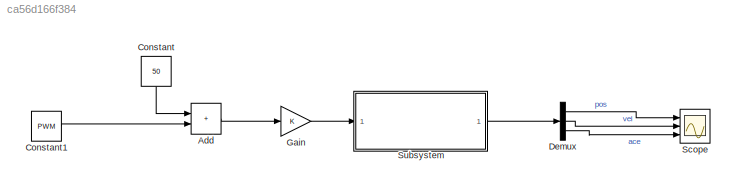
MODEL slx_ca56d166f384
KIND model
CONFIG AbsTol = auto
CONFIG EnableMultiTasking = off
CONFIG FixedStep = auto
CONFIG MaxStep = auto
CONFIG MinStep = auto
CONFIG RelTol = 1e-3
CONFIG SampleTimeConstraint = Unconstrained
CONFIG SolverName = VariableStepAuto
CONFIG StartTime = 0.0
CONFIG StopTime = 10.0
BLOCK [Sum] Add
  IconShape = rectangular
  Ports = [2, 1]
BLOCK [Constant] Constant
  NameLocation = left
  Value = 50
BLOCK [Constant] Constant1
  Value = PWM
BLOCK [Demux] Demux
  Outputs = 3
  Ports = [1, 3]
BLOCK [Gain] Gain
  Gain = K
BLOCK [Scope] Scope
  Floating = off
  NumInputPorts = 3
  Ports = [3]
  ScopeSpecificationString = Simulink.scopes.TimeScopeBlockCfg('CurrentConfiguration', extmgr.ConfigurationSet(extmgr.Configuration('Core','General UI',true),extmgr.Configuration('Core','Source UI',true),extmgr.Configuration('Sources','WiredSimulink',true),extmgr.Configuration('Visuals','Time Domain',true,'SerializedDisplays',{struct('MinYLimReal','-91.61839','MaxYLimReal','93.1468','YLabelReal','','MinYLimMag','0.00000','Max...<+1432ch>
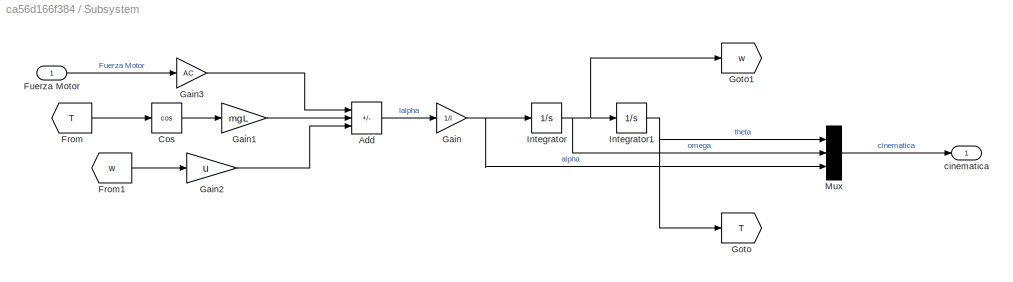
BLOCK [SubSystem] Subsystem
  Ports = [1, 1]
  RequestExecContextInheritance = off
BLOCK [Sum] Subsystem/Add
  IconShape = rectangular
  Inputs = ++-
  Ports = [3, 1]
BLOCK [Trigonometry] Subsystem/Cos
  Operator = cos
  Ports = [1, 1]
BLOCK [From] Subsystem/From
  GotoTag = T
BLOCK [From] Subsystem/From1
  GotoTag = w
BLOCK [Inport] Subsystem/Fuerza Motor
BLOCK [Gain] Subsystem/Gain
  Gain = 1/I
BLOCK [Gain] Subsystem/Gain1
  Gain = mgL
BLOCK [Gain] Subsystem/Gain2
  Gain = u
BLOCK [Gain] Subsystem/Gain3
  Gain = AC
BLOCK [Goto] Subsystem/Goto
  GotoTag = T
BLOCK [Goto] Subsystem/Goto1
  GotoTag = w
BLOCK [Integrator] Subsystem/Integrator
  Ports = [1, 1]
BLOCK [Integrator] Subsystem/Integrator1
  InitialCondition = -70
  Ports = [1, 1]
BLOCK [Mux] Subsystem/Mux
  DisplayOption = bar
  Inputs = 3
  Ports = [3, 1]
BLOCK [Outport] Subsystem/cinematica
LINE Add:1 -> Gain:1
LINE Constant1:1 -> Add:2
LINE Constant:1 -> Add:1
LINE Demux:1 -> Scope:1
LINE Demux:2 -> Scope:2
LINE Demux:3 -> Scope:3
LINE Gain:1 -> Subsystem:1
LINE Subsystem/Add:1 -> Subsystem/Gain:1
LINE Subsystem/Cos:1 -> Subsystem/Gain1:1
LINE Subsystem/From1:1 -> Subsystem/Gain2:1
LINE Subsystem/From:1 -> Subsystem/Cos:1
LINE Subsystem/Fuerza Motor:1 -> Subsystem/Gain3:1
LINE Subsystem/Gain1:1 -> Subsystem/Add:2
LINE Subsystem/Gain2:1 -> Subsystem/Add:3
LINE Subsystem/Gain3:1 -> Subsystem/Add:1
NET Subsystem/Gain:1 -> Subsystem/Integrator:1, Subsystem/Mux:3
NET Subsystem/Integrator1:1 -> Subsystem/Goto:1, Subsystem/Mux:1
NET Subsystem/Integrator:1 -> Subsystem/Goto1:1, Subsystem/Integrator1:1, Subsystem/Mux:2
LINE Subsystem/Mux:1 -> Subsystem/cinematica:1
LINE Subsystem:1 -> Demux:1
note: NET lines group one-source signal fan-out (src -> all destinations, sorted); 1:1 wires keep LINE
